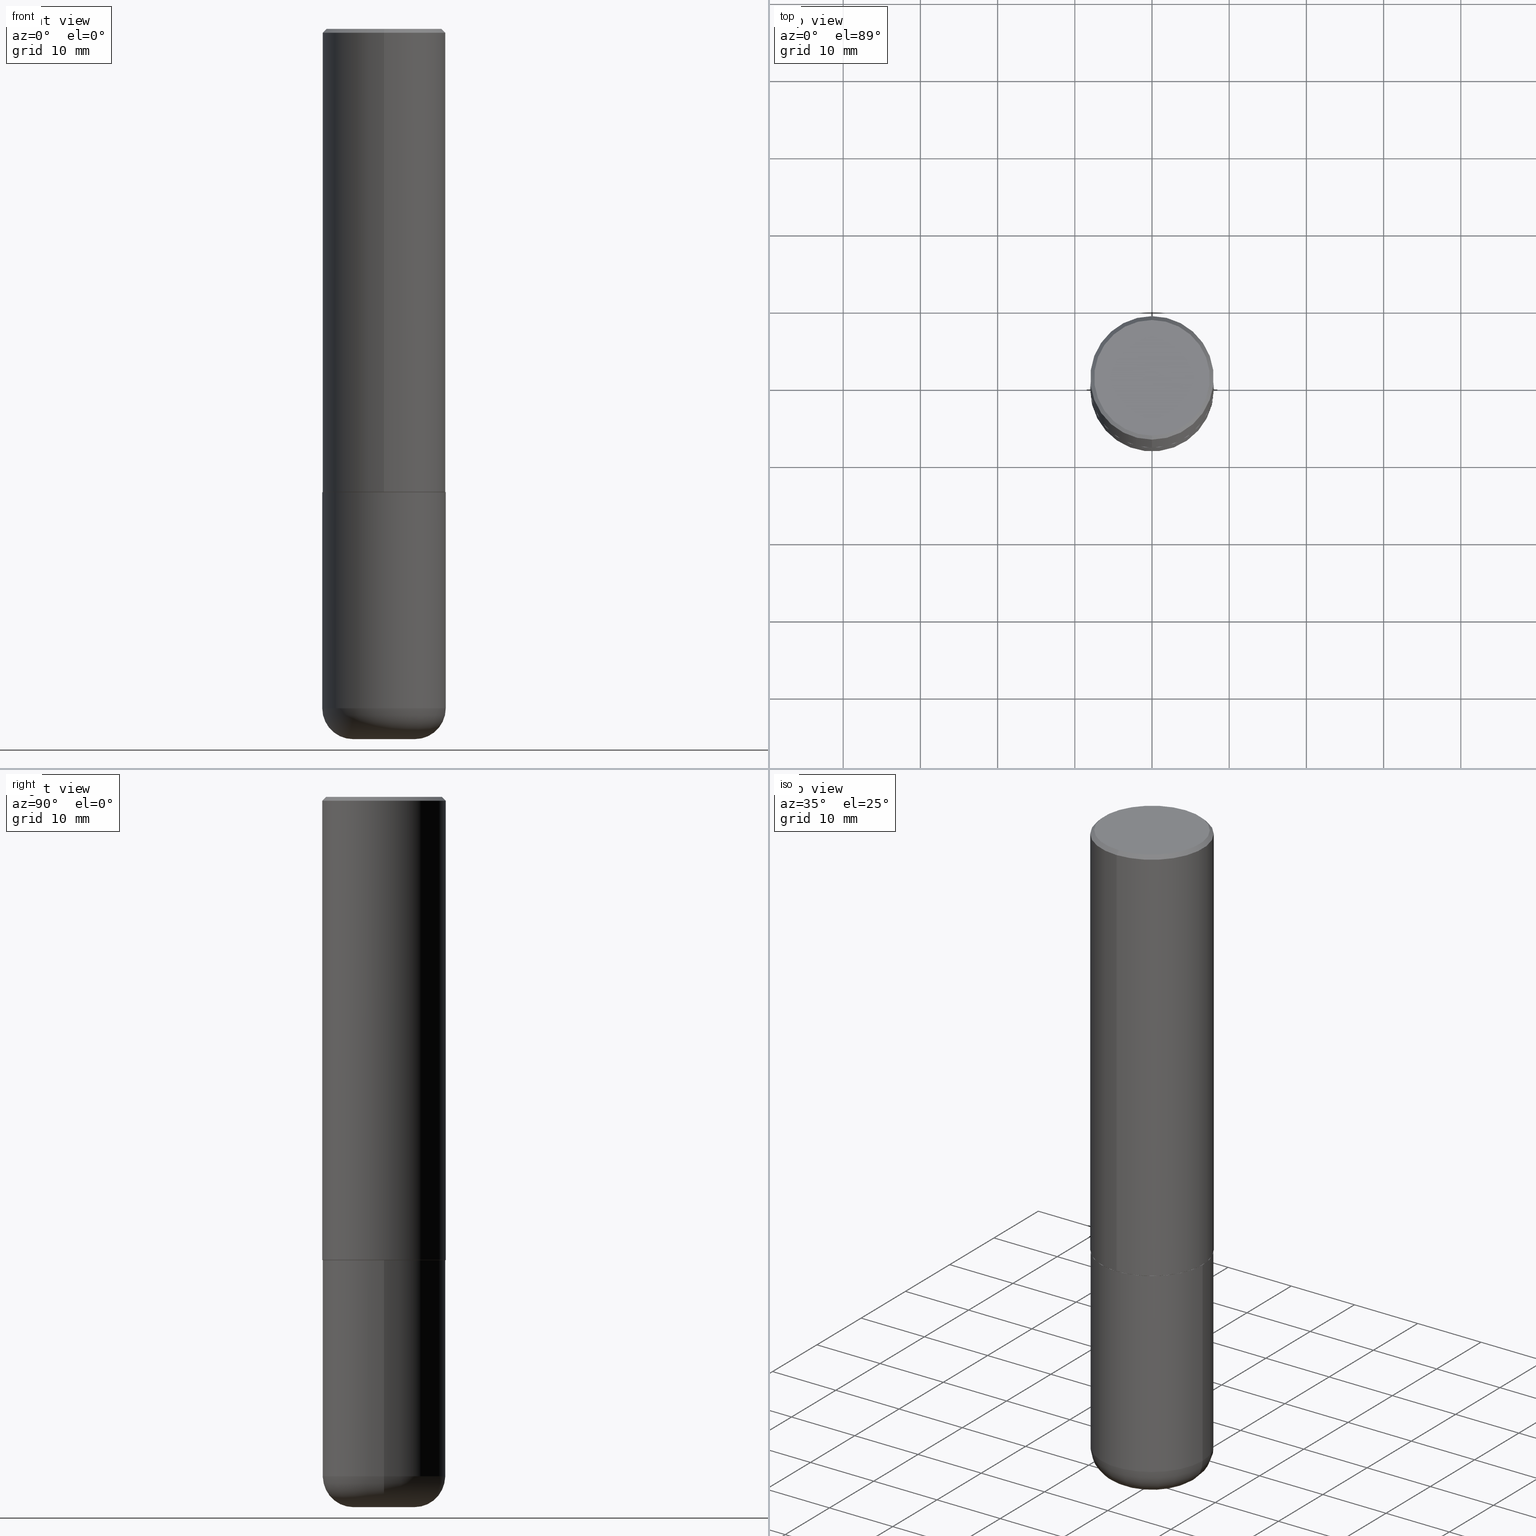
[diagram: canonical four-view strip — front | top / right | iso, engineering-drawing reading convention]
A machine part, canonical four-view strip (front | top / right | iso — engineering-drawing reading convention). The complete STEP part file that produces these views, byte-faithful:
ISO-10303-21;
HEADER;
FILE_DESCRIPTION (( 'STEP AP203' ),
    '1' );
FILE_NAME ('46482.STEP',
    '2024-03-04T23:54:19',
    ( '' ),
    ( '' ),
    'SwSTEP 2.0',
    'SolidWorks 2023',
    '' );
FILE_SCHEMA (( 'CONFIG_CONTROL_DESIGN' ));
ENDSEC;

DATA;
#1 = EDGE_CURVE ( 'NONE', #2, #356, #378, .T. ) ;
#2 = VERTEX_POINT ( 'NONE', #124 ) ;
#3 = EDGE_LOOP ( 'NONE', ( #28, #325, #158, #416 ) ) ;
#4 = DIRECTION ( 'NONE',  ( -2.443050816129427755E-29, 3.494944038226367750E-15, 1.000000000000000000 ) ) ;
#5 = DIRECTION ( 'NONE',  ( 1.000000000000000000, -6.982962677686268288E-15, 0.000000000000000000 ) ) ;
#6 = EDGE_CURVE ( 'NONE', #363, #125, #137, .T. ) ;
#7 = VECTOR ( 'NONE', #64, 39.37007874015748143 ) ;
#8 = VECTOR ( 'NONE', #154, 39.37007874015748854 ) ;
#9 = PLANE ( 'NONE',  #388 ) ;
#10 = PRODUCT_RELATED_PRODUCT_CATEGORY ( 'detail', '', ( #53 ) ) ;
#11 = DATE_AND_TIME ( #164, #145 ) ;
#12 = SECURITY_CLASSIFICATION ( '', '', #91 ) ;
#13 = AXIS2_PLACEMENT_3D ( 'NONE', #304, #334, #16 ) ;
#14 = AXIS2_PLACEMENT_3D ( 'NONE', #271, #21, #133 ) ;
#15 = CARTESIAN_POINT ( 'NONE',  ( 2.234301632597693067E-15, 0.3139499999999917357, -2.362200000000000966 ) ) ;
#16 = DIRECTION ( 'NONE',  ( -6.982962677686264344E-15, -1.000000000000000000, 3.494944038226367355E-15 ) ) ;
#17 = CALENDAR_DATE ( 2024, 4, 3 ) ;
#18 = VERTEX_POINT ( 'NONE', #328 ) ;
#19 = CALENDAR_DATE ( 2024, 4, 3 ) ;
#20 = FACE_OUTER_BOUND ( 'NONE', #36, .T. ) ;
#21 = DIRECTION ( 'NONE',  ( -2.443050816129427755E-29, 3.494944038226367750E-15, 1.000000000000000000 ) ) ;
#22 = AXIS2_PLACEMENT_3D ( 'NONE', #352, #365, #341 ) ;
#23 = CC_DESIGN_PERSON_AND_ORGANIZATION_ASSIGNMENT ( #172, #65, ( #53 ) ) ;
#24 = DIRECTION ( 'NONE',  ( -6.982962677686265133E-15, -1.000000000000000000, 3.494944038226367750E-15 ) ) ;
#25 = FACE_OUTER_BOUND ( 'NONE', #180, .T. ) ;
#26 = CONICAL_SURFACE ( 'NONE', #98, 0.3139500000000000068, 0.7853981633974141952 ) ;
#27 = APPROVAL ( #301, 'UNSPECIFIED' ) ;
#28 = ORIENTED_EDGE ( 'NONE', *, *, #347, .T. ) ;
#29 = LINE ( 'NONE', #33, #8 ) ;
#30 = AXIS2_PLACEMENT_3D ( 'NONE', #372, #171, #67 ) ;
#31 = VECTOR ( 'NONE', #112, 39.37007874015748854 ) ;
#32 = ORIENTED_EDGE ( 'NONE', *, *, #47, .T. ) ;
#33 = CARTESIAN_POINT ( 'NONE',  ( 2.199284095337290265E-15, 0.3149500000000000077, -0.02000000000000118697 ) ) ;
#34 = LENGTH_MEASURE_WITH_UNIT ( LENGTH_MEASURE( 0.02539999999999999897 ), #135 );
#35 = ADVANCED_FACE ( 'NONE', ( #355 ), #187, .T. ) ;
#36 = EDGE_LOOP ( 'NONE', ( #418, #281 ) ) ;
#37 = DIRECTION ( 'NONE',  ( 5.024295867787889629E-15, 0.7071067811865257013, 0.7071067811865691111 ) ) ;
#38 = APPROVAL_PERSON_ORGANIZATION ( #167, #173, #136 ) ;
#39 = VERTEX_POINT ( 'NONE', #395 ) ;
#40 = CARTESIAN_POINT ( 'NONE',  ( 2.199284095337290265E-15, 0.3149500000000000077, -0.02000000000000118697 ) ) ;
#41 = ORIENTED_EDGE ( 'NONE', *, *, #239, .T. ) ;
#42 = CYLINDRICAL_SURFACE ( 'NONE', #179, 0.3149500000000000077 ) ;
#43 = DIRECTION ( 'NONE',  ( 1.000000000000000000, -6.982962677686268288E-15, 0.000000000000000000 ) ) ;
#44 = DATE_TIME_ROLE ( 'creation_date' ) ;
#45 = DIRECTION ( 'NONE',  ( 6.982962677686265922E-15, 1.000000000000000000, -3.496670018878888311E-15 ) ) ;
#46 = DATE_TIME_ROLE ( 'classification_date' ) ;
#47 = EDGE_CURVE ( 'NONE', #18, #39, #205, .T. ) ;
#48 = AXIS2_PLACEMENT_3D ( 'NONE', #169, #299, #238 ) ;
#49 = CARTESIAN_POINT ( 'NONE',  ( -2.092108864420429609E-15, -0.2949500000000003785, 7.714758053618247912E-16 ) ) ;
#50 = DATE_AND_TIME ( #343, #168 ) ;
#51 = CARTESIAN_POINT ( 'NONE',  ( 4.886101632258876704E-31, -6.989888076452765624E-17, -0.02000000000000008715 ) ) ;
#52 = FACE_OUTER_BOUND ( 'NONE', #182, .T. ) ;
#53 = PRODUCT ( '46482', '46482', '', ( #68 ) ) ;
#54 = CIRCLE ( 'NONE', #283, 0.3149500000000000632 ) ;
#55 = CIRCLE ( 'NONE', #285, 0.3139500000000000068 ) ;
#56 = FACE_OUTER_BOUND ( 'NONE', #414, .T. ) ;
#57 = UNCERTAINTY_MEASURE_WITH_UNIT (LENGTH_MEASURE( 1.000000000000000082E-05 ), #87, 'distance_accuracy_value', 'NONE');
#58 = CARTESIAN_POINT ( 'NONE',  ( 5.776686413970529753E-29, -8.247577218615278049E-15, -2.362199999999999633 ) ) ;
#59 = EDGE_LOOP ( 'NONE', ( #370, #166, #286, #155 ) ) ;
#60 = VECTOR ( 'NONE', #163, 39.37007874015748143 ) ;
#61 = ORIENTED_EDGE ( 'NONE', *, *, #351, .T. ) ;
#62 = PERSON_AND_ORGANIZATION ( #386, #305 ) ;
#63 = CC_DESIGN_PERSON_AND_ORGANIZATION_ASSIGNMENT ( #298, #140, ( #186 ) ) ;
#64 = DIRECTION ( 'NONE',  ( -2.443050816129427755E-29, 3.494944038226367750E-15, 1.000000000000000000 ) ) ;
#65 = PERSON_AND_ORGANIZATION_ROLE ( 'design_owner' ) ;
#66 = CONICAL_SURFACE ( 'NONE', #262, 0.3149500000000000632, 0.7853981633974456145 ) ;
#67 = DIRECTION ( 'NONE',  ( -6.982962677686265922E-15, -1.000000000000000000, 3.496670018878888311E-15 ) ) ;
#68 = MECHANICAL_CONTEXT ( 'NONE', #324, 'mechanical' ) ;
#69 = DATE_AND_TIME ( #17, #274 ) ;
#70 = LINE ( 'NONE', #317, #379 ) ;
#71 = ORIENTED_EDGE ( 'NONE', *, *, #396, .T. ) ;
#72 = APPLICATION_PROTOCOL_DEFINITION ( 'international standard', 'config_control_design', 1994, #407 ) ;
#73 = ADVANCED_FACE ( 'NONE', ( #389 ), #81, .T. ) ;
#74 = FACE_OUTER_BOUND ( 'NONE', #3, .T. ) ;
#75 = CIRCLE ( 'NONE', #206, 0.2949500000000003785 ) ;
#76 = CONICAL_SURFACE ( 'NONE', #138, 0.3139500000000000068, 0.7853981633974141952 ) ;
#77 = EDGE_CURVE ( 'NONE', #85, #93, #402, .T. ) ;
#78 = CYLINDRICAL_SURFACE ( 'NONE', #409, 0.3149500000000001743 ) ;
#79 = DESIGN_CONTEXT ( 'detailed design', #407, 'design' ) ;
#80 = CC_DESIGN_SECURITY_CLASSIFICATION ( #12, ( #186 ) ) ;
#81 = CONICAL_SURFACE ( 'NONE', #175, 0.3149500000000000632, 0.7853981633974456145 ) ;
#82 = ORIENTED_EDGE ( 'NONE', *, *, #218, .T. ) ;
#83 = CARTESIAN_POINT ( 'NONE',  ( 4.886101632258876704E-31, -6.989888076452765624E-17, -0.02000000000000008715 ) ) ;
#84 = ADVANCED_FACE ( 'NONE', ( #195 ), #234, .T. ) ;
#85 = VERTEX_POINT ( 'NONE', #236 ) ;
#86 = CIRCLE ( 'NONE', #316, 0.1574500000000000621 ) ;
#87 =( CONVERSION_BASED_UNIT ( 'INCH', #34 ) LENGTH_UNIT ( ) NAMED_UNIT ( #382 ) );
#88 = CARTESIAN_POINT ( 'NONE',  ( -2.199284095337233467E-15, -0.3149500000000085564, -2.361199999999998411 ) ) ;
#89 = CARTESIAN_POINT ( 'NONE',  ( 8.472326679028403758E-29, -1.209623709842207707E-14, -3.464499999999999691 ) ) ;
#90 = EDGE_CURVE ( 'NONE', #260, #216, #242, .T. ) ;
#91 = SECURITY_CLASSIFICATION_LEVEL ( 'unclassified' ) ;
#92 = ORIENTED_EDGE ( 'NONE', *, *, #353, .T. ) ;
#93 = VERTEX_POINT ( 'NONE', #40 ) ;
#94 = PERSON_AND_ORGANIZATION ( #386, #305 ) ;
#95 = CARTESIAN_POINT ( 'NONE',  ( 8.857488016002564476E-29, -1.264614540928987199E-14, -3.621999999999999886 ) ) ;
#96 = DIRECTION ( 'NONE',  ( -2.445468806185136597E-29, 3.491481338843145583E-15, 1.000000000000000000 ) ) ;
#97 = CIRCLE ( 'NONE', #30, 0.3149500000000000632 ) ;
#98 = AXIS2_PLACEMENT_3D ( 'NONE', #225, #150, #253 ) ;
#99 = EDGE_CURVE ( 'NONE', #356, #18, #297, .T. ) ;
#100 = PERSON_AND_ORGANIZATION_ROLE ( 'creator' ) ;
#101 = DIRECTION ( 'NONE',  ( 6.982962677686265922E-15, 1.000000000000000000, -3.496670018878888311E-15 ) ) ;
#102 = CARTESIAN_POINT ( 'NONE',  ( 0.000000000000000000, 0.000000000000000000, 0.000000000000000000 ) ) ;
#103 = DIRECTION ( 'NONE',  ( -2.443050816129427755E-29, 3.494944038226367750E-15, 1.000000000000000000 ) ) ;
#104 = DIRECTION ( 'NONE',  ( 0.000000000000000000, 0.000000000000000000, 1.000000000000000000 ) ) ;
#105 = DIRECTION ( 'NONE',  ( 1.000000000000000000, -6.982962677686266711E-15, 4.876176775795936353E-29 ) ) ;
#106 = LINE ( 'NONE', #144, #327 ) ;
#107 = ORIENTED_EDGE ( 'NONE', *, *, #1, .T. ) ;
#108 = CYLINDRICAL_SURFACE ( 'NONE', #294, 0.3149500000000000077 ) ;
#109 = CIRCLE ( 'NONE', #342, 0.3149500000000002853 ) ;
#110 = DIRECTION ( 'NONE',  ( -6.982962677686266711E-15, -1.000000000000000000, 3.480615376543096919E-15 ) ) ;
#111 = CC_DESIGN_DATE_AND_TIME_ASSIGNMENT ( #69, #46, ( #12 ) ) ;
#112 = DIRECTION ( 'NONE',  ( -4.937700262164378437E-15, -0.7071067811865208164, 0.7071067811865739960 ) ) ;
#113 = DIRECTION ( 'NONE',  ( -2.445468806185136597E-29, 3.491481338843145583E-15, 1.000000000000000000 ) ) ;
#114 = EDGE_CURVE ( 'NONE', #125, #356, #54, .T. ) ;
#115 = CARTESIAN_POINT ( 'NONE',  ( 5.768531587044804082E-29, -8.252261863060098117E-15, -2.361199999999999299 ) ) ;
#116 = CARTESIAN_POINT ( 'NONE',  ( 5.776686413970529753E-29, -8.247577218615278049E-15, -2.362199999999999633 ) ) ;
#117 = VERTEX_POINT ( 'NONE', #49 ) ;
#118 = EDGE_LOOP ( 'NONE', ( #329, #183, #278, #318 ) ) ;
#119 = CIRCLE ( 'NONE', #354, 0.3149500000000000077 ) ;
#120 = CARTESIAN_POINT ( 'NONE',  ( 8.857488016002564476E-29, -1.264614540928987199E-14, -3.621999999999999886 ) ) ;
#121 = DIRECTION ( 'NONE',  ( 6.982962677686265922E-15, 1.000000000000000000, -3.494944038226367750E-15 ) ) ;
#122 = ORIENTED_EDGE ( 'NONE', *, *, #204, .F. ) ;
#123 = EDGE_CURVE ( 'NONE', #321, #93, #97, .T. ) ;
#124 = CARTESIAN_POINT ( 'NONE',  ( 0.1574500000000000621, -1.374561288289157517E-14, -3.621999999999999886 ) ) ;
#125 = VERTEX_POINT ( 'NONE', #309 ) ;
#126 = CARTESIAN_POINT ( 'NONE',  ( 2.059624841783566430E-15, 0.2949500000000003785, -1.160512713431390225E-15 ) ) ;
#127 = CARTESIAN_POINT ( 'NONE',  ( -2.192301132659545875E-15, -0.3139500000000082780, -2.362199999999998745 ) ) ;
#128 = APPLICATION_PROTOCOL_DEFINITION ( 'international standard', 'config_control_design', 1994, #324 ) ;
#129 = DIRECTION ( 'NONE',  ( -4.851104656540950075E-15, -0.7071067811865480168, -0.7071067811865469066 ) ) ;
#130 = DIRECTION ( 'NONE',  ( -2.445468806185136597E-29, 3.491481338843145583E-15, 1.000000000000000000 ) ) ;
#131 = CARTESIAN_POINT ( 'NONE',  ( 8.857488016002564476E-29, -1.264614540928987199E-14, -3.621999999999999886 ) ) ;
#132 = ORIENTED_EDGE ( 'NONE', *, *, #114, .T. ) ;
#133 = DIRECTION ( 'NONE',  ( -6.982962677686265922E-15, -1.000000000000000000, 3.469564049740290009E-15 ) ) ;
#134 = CARTESIAN_POINT ( 'NONE',  ( 2.129454468560428545E-15, 0.2949500000000003785, -1.290191682787912004E-15 ) ) ;
#135 =( LENGTH_UNIT ( ) NAMED_UNIT ( * ) SI_UNIT ( $, .METRE. ) );
#136 = APPROVAL_ROLE ( '' ) ;
#137 = CIRCLE ( 'NONE', #394, 0.1575000000000001399 ) ;
#138 = AXIS2_PLACEMENT_3D ( 'NONE', #312, #276, #110 ) ;
#139 = MANIFOLD_SOLID_BREP ( 'Body-Move/Copy2[2]', #340 ) ;
#140 = PERSON_AND_ORGANIZATION_ROLE ( 'design_supplier' ) ;
#141 = DIRECTION ( 'NONE',  ( 1.000000000000000000, -6.982962677686266711E-15, 4.883557194083112901E-29 ) ) ;
#142 = CC_DESIGN_PERSON_AND_ORGANIZATION_ASSIGNMENT ( #230, #100, ( #186 ) ) ;
#143 = AXIS2_PLACEMENT_3D ( 'NONE', #232, #348, #141 ) ;
#144 = CARTESIAN_POINT ( 'NONE',  ( -0.3149500000000000077, 2.237854346276435590E-15, -1.549218606675782676E-29 ) ) ;
#145 = LOCAL_TIME ( 18, 54, 19.00000000000000000, #263 ) ;
#146 = CLOSED_SHELL ( 'NONE', ( #156, #233, #247, #265, #35, #397 ) ) ;
#147 = VERTEX_POINT ( 'NONE', #134 ) ;
#148 = DIRECTION ( 'NONE',  ( -2.443050816129427755E-29, 3.494944038226367750E-15, 1.000000000000000000 ) ) ;
#149 = EDGE_LOOP ( 'NONE', ( #366, #256 ) ) ;
#150 = DIRECTION ( 'NONE',  ( -2.443050816129427755E-29, 3.494944038226367750E-15, 1.000000000000000000 ) ) ;
#151 = ORIENTED_EDGE ( 'NONE', *, *, #399, .F. ) ;
#152 = AXIS2_PLACEMENT_3D ( 'NONE', #51, #103, #174 ) ;
#153 = EDGE_CURVE ( 'NONE', #356, #125, #214, .T. ) ;
#154 = DIRECTION ( 'NONE',  ( 4.937700262164533843E-15, 0.7071067811865431318, -0.7071067811865517916 ) ) ;
#155 = ORIENTED_EDGE ( 'NONE', *, *, #218, .F. ) ;
#156 = ADVANCED_FACE ( 'NONE', ( #405 ), #108, .T. ) ;
#157 = AXIS2_PLACEMENT_3D ( 'NONE', #336, #269, #43 ) ;
#158 = ORIENTED_EDGE ( 'NONE', *, *, #153, .F. ) ;
#159 = CC_DESIGN_PERSON_AND_ORGANIZATION_ASSIGNMENT ( #368, #374, ( #12 ) ) ;
#160 = DIRECTION ( 'NONE',  ( -2.443050816129427755E-29, 3.494944038226367750E-15, 1.000000000000000000 ) ) ;
#161 = PLANE ( 'NONE',  #48 ) ;
#162 = ORIENTED_EDGE ( 'NONE', *, *, #279, .T. ) ;
#163 = DIRECTION ( 'NONE',  ( -2.445468806185136877E-29, 3.491481338843145188E-15, 1.000000000000000000 ) ) ;
#164 = CALENDAR_DATE ( 2024, 4, 3 ) ;
#165 = ADVANCED_FACE ( 'NONE', ( #25 ), #76, .T. ) ;
#166 = ORIENTED_EDGE ( 'NONE', *, *, #191, .T. ) ;
#167 = PERSON_AND_ORGANIZATION ( #386, #305 ) ;
#168 = LOCAL_TIME ( 18, 54, 19.00000000000000000, #194 ) ;
#169 = CARTESIAN_POINT ( 'NONE',  ( 5.770974637860933974E-29, -8.255756807098324700E-15, -2.362199999999999633 ) ) ;
#170 = FACE_OUTER_BOUND ( 'NONE', #149, .T. ) ;
#171 = DIRECTION ( 'NONE',  ( -2.443050816129427755E-29, 3.494944038226367750E-15, 1.000000000000000000 ) ) ;
#172 = PERSON_AND_ORGANIZATION ( #386, #305 ) ;
#173 = APPROVAL ( #199, 'UNSPECIFIED' ) ;
#174 = DIRECTION ( 'NONE',  ( -6.982962677686265922E-15, -1.000000000000000000, 3.496670018878888311E-15 ) ) ;
#175 = AXIS2_PLACEMENT_3D ( 'NONE', #83, #210, #45 ) ;
#176 = LOCAL_TIME ( 18, 54, 19.00000000000000000, #200 ) ;
#177 = CARTESIAN_POINT ( 'NONE',  ( -2.160713844398143757E-15, -0.3149500000000001743, -0.01999999999999898387 ) ) ;
#178 = AXIS2_PLACEMENT_3D ( 'NONE', #89, #323, #220 ) ;
#179 = AXIS2_PLACEMENT_3D ( 'NONE', #102, #130, #105 ) ;
#180 = EDGE_LOOP ( 'NONE', ( #272, #357, #219, #377 ) ) ;
#181 = DIRECTION ( 'NONE',  ( -1.000000000000000000, 7.105427357601003436E-15, 0.000000000000000000 ) ) ;
#182 = EDGE_LOOP ( 'NONE', ( #404, #209, #303, #361 ) ) ;
#183 = ORIENTED_EDGE ( 'NONE', *, *, #204, .T. ) ;
#184 = ADVANCED_BREP_SHAPE_REPRESENTATION ( '46482', ( #282, #139, #275 ), #244 ) ;
#185 = DIRECTION ( 'NONE',  ( -2.445468806185136597E-29, 3.491481338843145583E-15, 1.000000000000000000 ) ) ;
#186 = PRODUCT_DEFINITION_FORMATION_WITH_SPECIFIED_SOURCE ( 'ANY', '', #53, .NOT_KNOWN. ) ;
#187 = TOROIDAL_SURFACE ( 'NONE', #178, 0.1574500000000000066, 0.1575000000000000844 ) ;
#188 = FACE_OUTER_BOUND ( 'NONE', #411, .T. ) ;
#189 = CIRCLE ( 'NONE', #14, 0.3149500000000002853 ) ;
#190 = DIRECTION ( 'NONE',  ( -6.982962677686266711E-15, -1.000000000000000000, 3.491481338843145583E-15 ) ) ;
#191 = EDGE_CURVE ( 'NONE', #85, #367, #109, .T. ) ;
#192 = ORIENTED_EDGE ( 'NONE', *, *, #99, .T. ) ;
#193 = CARTESIAN_POINT ( 'NONE',  ( 5.770974637860933974E-29, -8.255756807098324700E-15, -2.362199999999999633 ) ) ;
#194 = COORDINATED_UNIVERSAL_TIME_OFFSET ( 5, 0, .BEHIND. ) ;
#195 = FACE_OUTER_BOUND ( 'NONE', #59, .T. ) ;
#196 = APPROVAL_ROLE ( '' ) ;
#197 = CARTESIAN_POINT ( 'NONE',  ( 0.000000000000000000, 0.000000000000000000, 0.000000000000000000 ) ) ;
#198 = CARTESIAN_POINT ( 'NONE',  ( 8.472326679028403758E-29, -1.209623709842207549E-14, -3.464499999999999247 ) ) ;
#199 = APPROVAL_STATUS ( 'not_yet_approved' ) ;
#200 = COORDINATED_UNIVERSAL_TIME_OFFSET ( 5, 0, .BEHIND. ) ;
#201 = VECTOR ( 'NONE', #37, 39.37007874015748854 ) ;
#202 = DIRECTION ( 'NONE',  ( 1.000000000000000000, -6.982962677686263555E-15, 0.000000000000000000 ) ) ;
#203 = DIRECTION ( 'NONE',  ( -2.443050816129427755E-29, 3.494944038226367750E-15, 1.000000000000000000 ) ) ;
#204 = EDGE_CURVE ( 'NONE', #125, #39, #106, .T. ) ;
#205 = CIRCLE ( 'NONE', #314, 0.3149500000000000077 ) ;
#206 = AXIS2_PLACEMENT_3D ( 'NONE', #322, #148, #413 ) ;
#207 = CC_DESIGN_DATE_AND_TIME_ASSIGNMENT ( #373, #44, ( #369 ) ) ;
#208 = DIRECTION ( 'NONE',  ( 1.000000000000000000, -6.982962677686266711E-15, 0.000000000000000000 ) ) ;
#209 = ORIENTED_EDGE ( 'NONE', *, *, #77, .T. ) ;
#210 = DIRECTION ( 'NONE',  ( 2.443050816129427755E-29, -3.494944038226367750E-15, -1.000000000000000000 ) ) ;
#211 = ORIENTED_EDGE ( 'NONE', *, *, #396, .F. ) ;
#212 = DIRECTION ( 'NONE',  ( -6.982962677686266711E-15, -1.000000000000000000, 3.480615376543096919E-15 ) ) ;
#213 = EDGE_LOOP ( 'NONE', ( #280, #41, #273, #288 ) ) ;
#214 = CIRCLE ( 'NONE', #157, 0.3149500000000000632 ) ;
#215 =( NAMED_UNIT ( * ) PLANE_ANGLE_UNIT ( ) SI_UNIT ( $, .RADIAN. ) );
#216 = VERTEX_POINT ( 'NONE', #15 ) ;
#217 = LOCAL_TIME ( 18, 54, 19.00000000000000000, #306 ) ;
#218 = EDGE_CURVE ( 'NONE', #93, #321, #264, .T. ) ;
#219 = ORIENTED_EDGE ( 'NONE', *, *, #417, .T. ) ;
#220 = DIRECTION ( 'NONE',  ( 1.000000000000000000, -6.982962677686266711E-15, 4.883557194083112901E-29 ) ) ;
#221 = DATE_AND_TIME ( #19, #176 ) ;
#222 = EDGE_LOOP ( 'NONE', ( #390, #162, #107, #259 ) ) ;
#223 = CARTESIAN_POINT ( 'NONE',  ( 2.237854346276435985E-15, 0.3149500000000001743, -1.100732624839394981E-15 ) ) ;
#224 = PERSON_AND_ORGANIZATION ( #386, #305 ) ;
#225 = CARTESIAN_POINT ( 'NONE',  ( 5.770974637860933974E-29, -8.255756807098324700E-15, -2.362199999999999633 ) ) ;
#226 = DIRECTION ( 'NONE',  ( 1.000000000000000000, -6.982962677686268288E-15, 0.000000000000000000 ) ) ;
#227 = AXIS2_PLACEMENT_3D ( 'NONE', #193, #160, #375 ) ;
#228 = CALENDAR_DATE ( 2024, 4, 3 ) ;
#229 = AXIS2_PLACEMENT_3D ( 'NONE', #311, #270, #24 ) ;
#230 = PERSON_AND_ORGANIZATION ( #386, #305 ) ;
#231 = CARTESIAN_POINT ( 'NONE',  ( 4.886101632258876704E-31, -6.989888076452765624E-17, -0.02000000000000008715 ) ) ;
#232 = CARTESIAN_POINT ( 'NONE',  ( 8.472326679028403758E-29, -1.209623709842207707E-14, -3.464499999999999691 ) ) ;
#233 = ADVANCED_FACE ( 'NONE', ( #74 ), #384, .T. ) ;
#234 = CYLINDRICAL_SURFACE ( 'NONE', #13, 0.3149500000000001743 ) ;
#235 = APPROVAL_DATE_TIME ( #221, #173 ) ;
#236 = CARTESIAN_POINT ( 'NONE',  ( 2.237854346276465567E-15, 0.3149499999999920141, -2.361200000000000632 ) ) ;
#237 = VECTOR ( 'NONE', #245, 39.37007874015748143 ) ;
#238 = DIRECTION ( 'NONE',  ( -6.982962677686265922E-15, -1.000000000000000000, 3.494944038226367750E-15 ) ) ;
#239 = EDGE_CURVE ( 'NONE', #117, #321, #70, .T. ) ;
#240 = ADVANCED_FACE ( 'NONE', ( #52 ), #78, .T. ) ;
#241 = APPROVAL_PERSON_ORGANIZATION ( #224, #27, #376 ) ;
#242 = CIRCLE ( 'NONE', #227, 0.3139500000000000068 ) ;
#243 = PLANE ( 'NONE',  #22 ) ;
#244 =( GEOMETRIC_REPRESENTATION_CONTEXT ( 3 ) GLOBAL_UNCERTAINTY_ASSIGNED_CONTEXT ( ( #57 ) ) GLOBAL_UNIT_ASSIGNED_CONTEXT ( ( #87, #215, #258 ) ) REPRESENTATION_CONTEXT ( 'NONE', 'WORKASPACE' ) );
#245 = DIRECTION ( 'NONE',  ( -2.443050816129427755E-29, 3.494944038226367750E-15, 1.000000000000000000 ) ) ;
#246 = LINE ( 'NONE', #383, #31 ) ;
#247 = ADVANCED_FACE ( 'NONE', ( #188 ), #243, .F. ) ;
#248 = CIRCLE ( 'NONE', #350, 0.1574500000000000621 ) ;
#249 = ORIENTED_EDGE ( 'NONE', *, *, #90, .T. ) ;
#250 = DIRECTION ( 'NONE',  ( -2.445468806185136597E-29, 3.491481338843145583E-15, 1.000000000000000000 ) ) ;
#251 = APPROVAL ( #266, 'UNSPECIFIED' ) ;
#252 = ORIENTED_EDGE ( 'NONE', *, *, #319, .T. ) ;
#253 = DIRECTION ( 'NONE',  ( -6.982962677686266711E-15, -1.000000000000000000, 3.480615376543096919E-15 ) ) ;
#254 = EDGE_LOOP ( 'NONE', ( #122, #132, #192, #211 ) ) ;
#255 = CARTESIAN_POINT ( 'NONE',  ( 0.1574500000000000066, -1.319570457202378025E-14, -3.464499999999999691 ) ) ;
#256 = ORIENTED_EDGE ( 'NONE', *, *, #279, .F. ) ;
#257 = APPROVAL_PERSON_ORGANIZATION ( #62, #251, #196 ) ;
#258 =( NAMED_UNIT ( * ) SI_UNIT ( $, .STERADIAN. ) SOLID_ANGLE_UNIT ( ) );
#259 = ORIENTED_EDGE ( 'NONE', *, *, #114, .F. ) ;
#260 = VERTEX_POINT ( 'NONE', #127 ) ;
#261 = DIRECTION ( 'NONE',  ( -2.445468806185136597E-29, 3.491481338843145583E-15, 1.000000000000000000 ) ) ;
#262 = AXIS2_PLACEMENT_3D ( 'NONE', #231, #403, #101 ) ;
#263 = COORDINATED_UNIVERSAL_TIME_OFFSET ( 5, 0, .BEHIND. ) ;
#264 = CIRCLE ( 'NONE', #152, 0.3149500000000000632 ) ;
#265 = ADVANCED_FACE ( 'NONE', ( #302 ), #42, .T. ) ;
#266 = APPROVAL_STATUS ( 'not_yet_approved' ) ;
#267 = PLANE ( 'NONE',  #371 ) ;
#268 = DIRECTION ( 'NONE',  ( -6.982962677686265922E-15, -1.000000000000000000, 3.469564049740290009E-15 ) ) ;
#269 = DIRECTION ( 'NONE',  ( -2.445468806185136597E-29, 3.491481338843145583E-15, 1.000000000000000000 ) ) ;
#270 = DIRECTION ( 'NONE',  ( -2.443050816129427755E-29, 3.494944038226367750E-15, 1.000000000000000000 ) ) ;
#271 = CARTESIAN_POINT ( 'NONE',  ( 5.768531587044804082E-29, -8.252261863060098117E-15, -2.361199999999999299 ) ) ;
#272 = ORIENTED_EDGE ( 'NONE', *, *, #391, .F. ) ;
#273 = ORIENTED_EDGE ( 'NONE', *, *, #123, .T. ) ;
#274 = LOCAL_TIME ( 18, 54, 19.00000000000000000, #364 ) ;
#275 = AXIS2_PLACEMENT_3D ( 'NONE', #295, #104, #338 ) ;
#276 = DIRECTION ( 'NONE',  ( -2.443050816129427755E-29, 3.494944038226367750E-15, 1.000000000000000000 ) ) ;
#277 = DIRECTION ( 'NONE',  ( -2.443050816129427755E-29, 3.494944038226367750E-15, 1.000000000000000000 ) ) ;
#278 = ORIENTED_EDGE ( 'NONE', *, *, #47, .F. ) ;
#279 = EDGE_CURVE ( 'NONE', #363, #2, #248, .T. ) ;
#280 = ORIENTED_EDGE ( 'NONE', *, *, #351, .F. ) ;
#281 = ORIENTED_EDGE ( 'NONE', *, *, #330, .F. ) ;
#282 = MANIFOLD_SOLID_BREP ( 'Body-Move/Copy2[1]', #146 ) ;
#283 = AXIS2_PLACEMENT_3D ( 'NONE', #198, #96, #226 ) ;
#284 = CARTESIAN_POINT ( 'NONE',  ( 0.3149500000000001743, -1.429552119375936694E-14, -3.464499999999999247 ) ) ;
#285 = AXIS2_PLACEMENT_3D ( 'NONE', #381, #277, #212 ) ;
#286 = ORIENTED_EDGE ( 'NONE', *, *, #406, .T. ) ;
#287 = EDGE_LOOP ( 'NONE', ( #252, #61 ) ) ;
#288 = ORIENTED_EDGE ( 'NONE', *, *, #353, .F. ) ;
#289 = ORIENTED_EDGE ( 'NONE', *, *, #417, .F. ) ;
#290 = ORIENTED_EDGE ( 'NONE', *, *, #239, .F. ) ;
#291 = FACE_OUTER_BOUND ( 'NONE', #287, .T. ) ;
#292 = LINE ( 'NONE', #412, #237 ) ;
#293 = ADVANCED_FACE ( 'NONE', ( #20 ), #161, .F. ) ;
#294 = AXIS2_PLACEMENT_3D ( 'NONE', #300, #261, #400 ) ;
#295 = CARTESIAN_POINT ( 'NONE',  ( 0.000000000000000000, 0.000000000000000000, 0.000000000000000000 ) ) ;
#296 = DIRECTION ( 'NONE',  ( 2.443050816129427475E-29, -3.494944038226367750E-15, -1.000000000000000000 ) ) ;
#297 = LINE ( 'NONE', #398, #60 ) ;
#298 = PERSON_AND_ORGANIZATION ( #386, #305 ) ;
#299 = DIRECTION ( 'NONE',  ( -2.443050816129427475E-29, 3.494944038226367750E-15, 1.000000000000000000 ) ) ;
#300 = CARTESIAN_POINT ( 'NONE',  ( 0.000000000000000000, 0.000000000000000000, 0.000000000000000000 ) ) ;
#301 = APPROVAL_STATUS ( 'not_yet_approved' ) ;
#302 = FACE_OUTER_BOUND ( 'NONE', #254, .T. ) ;
#303 = ORIENTED_EDGE ( 'NONE', *, *, #123, .F. ) ;
#304 = CARTESIAN_POINT ( 'NONE',  ( 0.000000000000000000, 0.000000000000000000, 0.000000000000000000 ) ) ;
#305 = ORGANIZATION ( 'UNSPECIFIED', 'UNSPECIFIED', '' ) ;
#306 = COORDINATED_UNIVERSAL_TIME_OFFSET ( 5, 0, .BEHIND. ) ;
#307 = ADVANCED_FACE ( 'NONE', ( #346 ), #66, .T. ) ;
#308 = ORIENTED_EDGE ( 'NONE', *, *, #319, .F. ) ;
#309 = CARTESIAN_POINT ( 'NONE',  ( -0.3149500000000001743, -9.858382752145637926E-15, -3.464499999999999247 ) ) ;
#310 = APPROVAL_DATE_TIME ( #50, #251 ) ;
#311 = CARTESIAN_POINT ( 'NONE',  ( 6.336246238425474629E-45, -9.064414816718317590E-31, -2.593579387130437049E-16 ) ) ;
#312 = CARTESIAN_POINT ( 'NONE',  ( 5.770974637860933974E-29, -8.255756807098324700E-15, -2.362199999999999633 ) ) ;
#313 = DIRECTION ( 'NONE',  ( 2.438088387897960049E-29, -3.491481338843145188E-15, -1.000000000000000000 ) ) ;
#314 = AXIS2_PLACEMENT_3D ( 'NONE', #116, #250, #208 ) ;
#315 = DIRECTION ( 'NONE',  ( -6.982962677686264344E-15, -1.000000000000000000, 3.494944038226367355E-15 ) ) ;
#316 = AXIS2_PLACEMENT_3D ( 'NONE', #120, #113, #320 ) ;
#317 = CARTESIAN_POINT ( 'NONE',  ( -2.160713844398143757E-15, -0.3149500000000001743, -0.01999999999999898387 ) ) ;
#318 = ORIENTED_EDGE ( 'NONE', *, *, #99, .F. ) ;
#319 = EDGE_CURVE ( 'NONE', #147, #117, #333, .T. ) ;
#320 = DIRECTION ( 'NONE',  ( 1.000000000000000000, -6.982962677686263555E-15, 0.000000000000000000 ) ) ;
#321 = VERTEX_POINT ( 'NONE', #177 ) ;
#322 = CARTESIAN_POINT ( 'NONE',  ( 6.336246238425474629E-45, -9.064414816718317590E-31, -2.593579387130437049E-16 ) ) ;
#323 = DIRECTION ( 'NONE',  ( -2.445468806185136597E-29, 3.491481338843145583E-15, 1.000000000000000000 ) ) ;
#324 = APPLICATION_CONTEXT ( 'configuration controlled 3d designs of mechanical parts and assemblies' ) ;
#325 = ORIENTED_EDGE ( 'NONE', *, *, #6, .T. ) ;
#326 = AXIS2_PLACEMENT_3D ( 'NONE', #255, #190, #5 ) ;
#327 = VECTOR ( 'NONE', #345, 39.37007874015748143 ) ;
#328 = CARTESIAN_POINT ( 'NONE',  ( 0.3149500000000000077, -1.044686131395256792E-14, -2.362199999999999633 ) ) ;
#329 = ORIENTED_EDGE ( 'NONE', *, *, #153, .T. ) ;
#330 = EDGE_CURVE ( 'NONE', #216, #260, #55, .T. ) ;
#331 = SHAPE_DEFINITION_REPRESENTATION ( #410, #184 ) ;
#332 = CARTESIAN_POINT ( 'NONE',  ( -0.1574500000000000621, -1.069288931199061498E-14, -3.621999999999999886 ) ) ;
#333 = CIRCLE ( 'NONE', #229, 0.2949500000000003785 ) ;
#334 = DIRECTION ( 'NONE',  ( -2.443050816129427755E-29, 3.494944038226367750E-15, 1.000000000000000000 ) ) ;
#335 = CC_DESIGN_PERSON_AND_ORGANIZATION_ASSIGNMENT ( #94, #337, ( #369 ) ) ;
#336 = CARTESIAN_POINT ( 'NONE',  ( 8.472326679028403758E-29, -1.209623709842207549E-14, -3.464499999999999247 ) ) ;
#337 = PERSON_AND_ORGANIZATION_ROLE ( 'creator' ) ;
#338 = DIRECTION ( 'NONE',  ( 1.000000000000000000, 0.000000000000000000, 0.000000000000000000 ) ) ;
#339 = ORIENTED_EDGE ( 'NONE', *, *, #391, .T. ) ;
#340 = CLOSED_SHELL ( 'NONE', ( #408, #240, #73, #307, #84, #165, #293, #393 ) ) ;
#341 = DIRECTION ( 'NONE',  ( -1.000000000000000000, 6.982962677686265922E-15, -4.876176775795935793E-29 ) ) ;
#342 = AXIS2_PLACEMENT_3D ( 'NONE', #115, #4, #268 ) ;
#343 = CALENDAR_DATE ( 2024, 4, 3 ) ;
#344 = DIRECTION ( 'NONE',  ( -2.445468806185136597E-29, 3.491481338843145583E-15, 1.000000000000000000 ) ) ;
#345 = DIRECTION ( 'NONE',  ( -2.445468806185136877E-29, 3.491481338843145188E-15, 1.000000000000000000 ) ) ;
#346 = FACE_OUTER_BOUND ( 'NONE', #359, .T. ) ;
#347 = EDGE_CURVE ( 'NONE', #2, #363, #86, .T. ) ;
#348 = DIRECTION ( 'NONE',  ( -2.445468806185136597E-29, 3.491481338843145583E-15, 1.000000000000000000 ) ) ;
#349 = DIRECTION ( 'NONE',  ( -1.000000000000000000, 6.982962677686265922E-15, -4.876176775795935793E-29 ) ) ;
#350 = AXIS2_PLACEMENT_3D ( 'NONE', #131, #344, #202 ) ;
#351 = EDGE_CURVE ( 'NONE', #117, #147, #75, .T. ) ;
#352 = CARTESIAN_POINT ( 'NONE',  ( 5.776686413970529753E-29, -8.247577218615278049E-15, -2.362199999999999633 ) ) ;
#353 = EDGE_CURVE ( 'NONE', #147, #93, #29, .T. ) ;
#354 = AXIS2_PLACEMENT_3D ( 'NONE', #58, #185, #380 ) ;
#355 = FACE_OUTER_BOUND ( 'NONE', #222, .T. ) ;
#356 = VERTEX_POINT ( 'NONE', #284 ) ;
#357 = ORIENTED_EDGE ( 'NONE', *, *, #330, .T. ) ;
#358 = LINE ( 'NONE', #362, #201 ) ;
#359 = EDGE_LOOP ( 'NONE', ( #290, #308, #92, #82 ) ) ;
#360 = CC_DESIGN_APPROVAL ( #251, ( #12 ) ) ;
#361 = ORIENTED_EDGE ( 'NONE', *, *, #406, .F. ) ;
#362 = CARTESIAN_POINT ( 'NONE',  ( 2.230748918918891775E-15, 0.3139499999999917357, -2.362200000000000966 ) ) ;
#363 = VERTEX_POINT ( 'NONE', #332 ) ;
#364 = COORDINATED_UNIVERSAL_TIME_OFFSET ( 5, 0, .BEHIND. ) ;
#365 = DIRECTION ( 'NONE',  ( 2.438088387897960049E-29, -3.491481338843145188E-15, -1.000000000000000000 ) ) ;
#366 = ORIENTED_EDGE ( 'NONE', *, *, #347, .F. ) ;
#367 = VERTEX_POINT ( 'NONE', #88 ) ;
#368 = PERSON_AND_ORGANIZATION ( #386, #305 ) ;
#369 = PRODUCT_DEFINITION ( 'UNKNOWN', '', #186, #79 ) ;
#370 = ORIENTED_EDGE ( 'NONE', *, *, #77, .F. ) ;
#371 = AXIS2_PLACEMENT_3D ( 'NONE', #95, #313, #349 ) ;
#372 = CARTESIAN_POINT ( 'NONE',  ( 4.886101632258876704E-31, -6.989888076452765624E-17, -0.02000000000000008715 ) ) ;
#373 = DATE_AND_TIME ( #228, #217 ) ;
#374 = PERSON_AND_ORGANIZATION_ROLE ( 'classification_officer' ) ;
#375 = DIRECTION ( 'NONE',  ( -6.982962677686266711E-15, -1.000000000000000000, 3.480615376543096919E-15 ) ) ;
#376 = APPROVAL_ROLE ( '' ) ;
#377 = ORIENTED_EDGE ( 'NONE', *, *, #191, .F. ) ;
#378 = CIRCLE ( 'NONE', #326, 0.1575000000000001399 ) ;
#379 = VECTOR ( 'NONE', #129, 39.37007874015748854 ) ;
#380 = DIRECTION ( 'NONE',  ( 1.000000000000000000, -6.982962677686266711E-15, 0.000000000000000000 ) ) ;
#381 = CARTESIAN_POINT ( 'NONE',  ( 5.770974637860933974E-29, -8.255756807098324700E-15, -2.362199999999999633 ) ) ;
#382 = DIMENSIONAL_EXPONENTS ( 1.000000000000000000, 0.000000000000000000, 0.000000000000000000, 0.000000000000000000, 0.000000000000000000, 0.000000000000000000, 0.000000000000000000 ) ;
#383 = CARTESIAN_POINT ( 'NONE',  ( -2.192301132659545875E-15, -0.3139500000000082780, -2.362199999999998745 ) ) ;
#384 = TOROIDAL_SURFACE ( 'NONE', #143, 0.1574500000000000066, 0.1575000000000000844 ) ;
#385 = CC_DESIGN_APPROVAL ( #27, ( #186 ) ) ;
#386 = PERSON ( 'UNSPECIFIED', 'UNSPECIFIED', 'UNSPECIFIED', ('UNSPECIFIED'), ('UNSPECIFIED'), ('UNSPECIFIED') ) ;
#387 = CARTESIAN_POINT ( 'NONE',  ( -0.1574500000000000066, -1.097748756096779869E-14, -3.464499999999999691 ) ) ;
#388 = AXIS2_PLACEMENT_3D ( 'NONE', #126, #296, #121 ) ;
#389 = FACE_OUTER_BOUND ( 'NONE', #213, .T. ) ;
#390 = ORIENTED_EDGE ( 'NONE', *, *, #6, .F. ) ;
#391 = EDGE_CURVE ( 'NONE', #216, #85, #358, .T. ) ;
#392 = DIRECTION ( 'NONE',  ( 7.105427357601001859E-15, 1.000000000000000000, -3.491481338843145583E-15 ) ) ;
#393 = ADVANCED_FACE ( 'NONE', ( #291 ), #9, .F. ) ;
#394 = AXIS2_PLACEMENT_3D ( 'NONE', #387, #392, #181 ) ;
#395 = CARTESIAN_POINT ( 'NONE',  ( -0.3149500000000000077, -7.934052812242240784E-15, -2.362199999999999633 ) ) ;
#396 = EDGE_CURVE ( 'NONE', #39, #18, #119, .T. ) ;
#397 = ADVANCED_FACE ( 'NONE', ( #170 ), #267, .T. ) ;
#398 = CARTESIAN_POINT ( 'NONE',  ( 0.3149500000000000077, -2.199284095337289871E-15, 1.535751875536930130E-29 ) ) ;
#399 = EDGE_CURVE ( 'NONE', #367, #85, #189, .T. ) ;
#400 = DIRECTION ( 'NONE',  ( 1.000000000000000000, -6.982962677686266711E-15, 4.876176775795936353E-29 ) ) ;
#401 = APPROVAL_DATE_TIME ( #11, #27 ) ;
#402 = LINE ( 'NONE', #223, #7 ) ;
#403 = DIRECTION ( 'NONE',  ( 2.443050816129427755E-29, -3.494944038226367750E-15, -1.000000000000000000 ) ) ;
#404 = ORIENTED_EDGE ( 'NONE', *, *, #399, .T. ) ;
#405 = FACE_OUTER_BOUND ( 'NONE', #118, .T. ) ;
#406 = EDGE_CURVE ( 'NONE', #367, #321, #292, .T. ) ;
#407 = APPLICATION_CONTEXT ( 'configuration controlled 3d designs of mechanical parts and assemblies' ) ;
#408 = ADVANCED_FACE ( 'NONE', ( #56 ), #26, .T. ) ;
#409 = AXIS2_PLACEMENT_3D ( 'NONE', #197, #203, #315 ) ;
#410 = PRODUCT_DEFINITION_SHAPE ( 'NONE', 'NONE',  #369 ) ;
#411 = EDGE_LOOP ( 'NONE', ( #32, #71 ) ) ;
#412 = CARTESIAN_POINT ( 'NONE',  ( -2.199284095337290265E-15, -0.3149500000000001743, 1.100732624839394981E-15 ) ) ;
#413 = DIRECTION ( 'NONE',  ( -6.982962677686265133E-15, -1.000000000000000000, 3.494944038226367750E-15 ) ) ;
#414 = EDGE_LOOP ( 'NONE', ( #249, #339, #151, #289 ) ) ;
#415 = CC_DESIGN_APPROVAL ( #173, ( #369 ) ) ;
#416 = ORIENTED_EDGE ( 'NONE', *, *, #1, .F. ) ;
#417 = EDGE_CURVE ( 'NONE', #260, #367, #246, .T. ) ;
#418 = ORIENTED_EDGE ( 'NONE', *, *, #90, .F. ) ;
ENDSEC;
END-ISO-10303-21;
